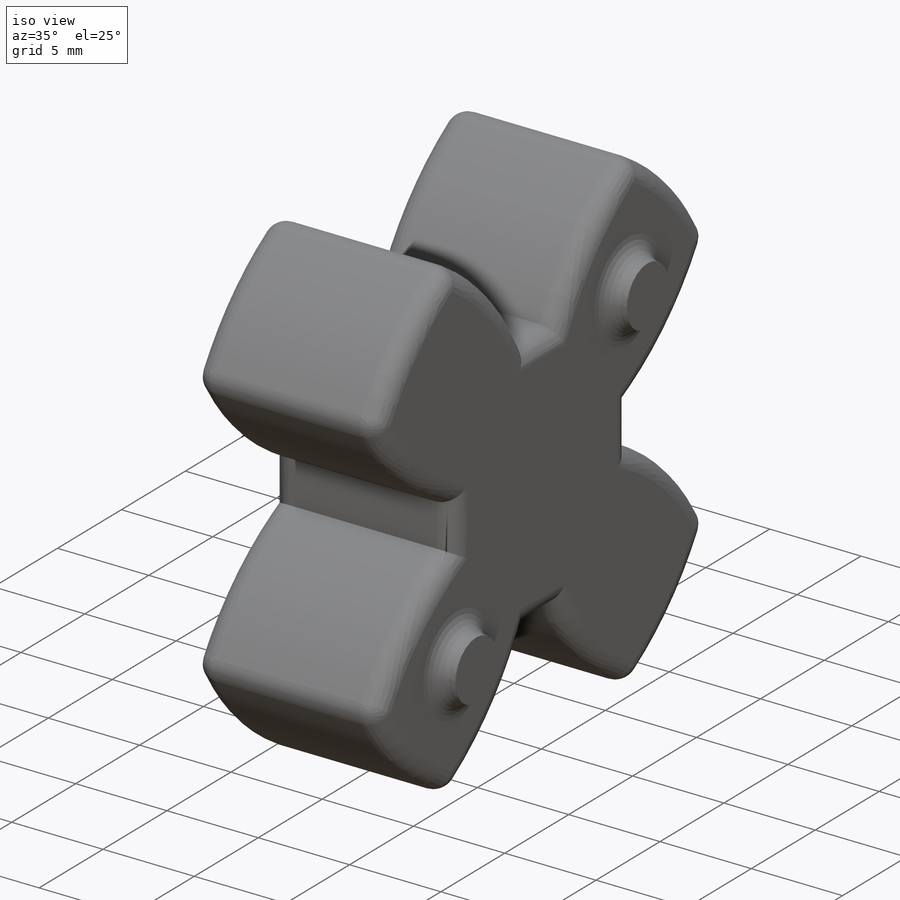
[diagram: iso view]
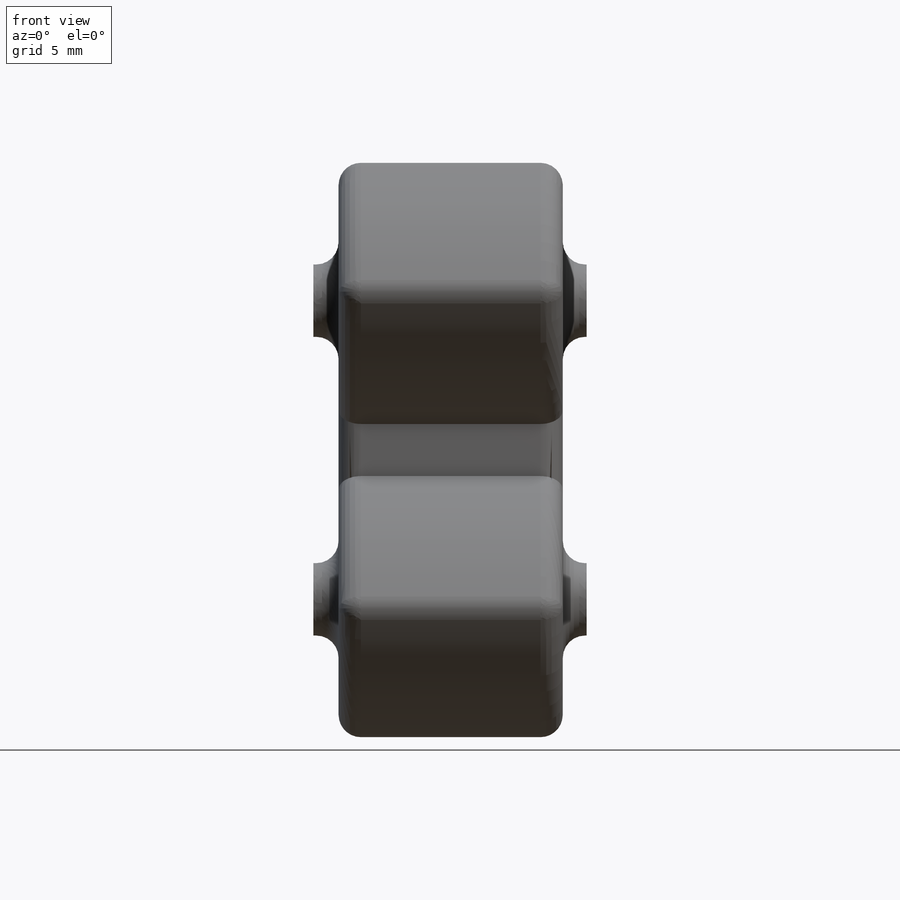
[diagram: front view]
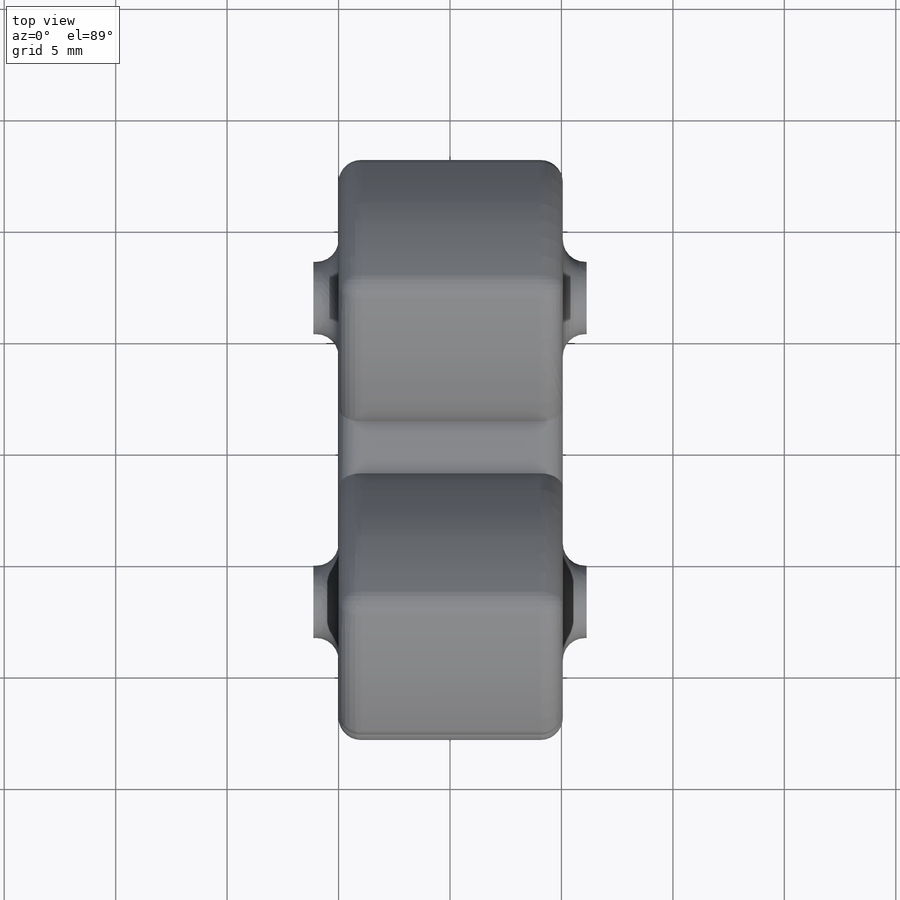
[diagram: top view]
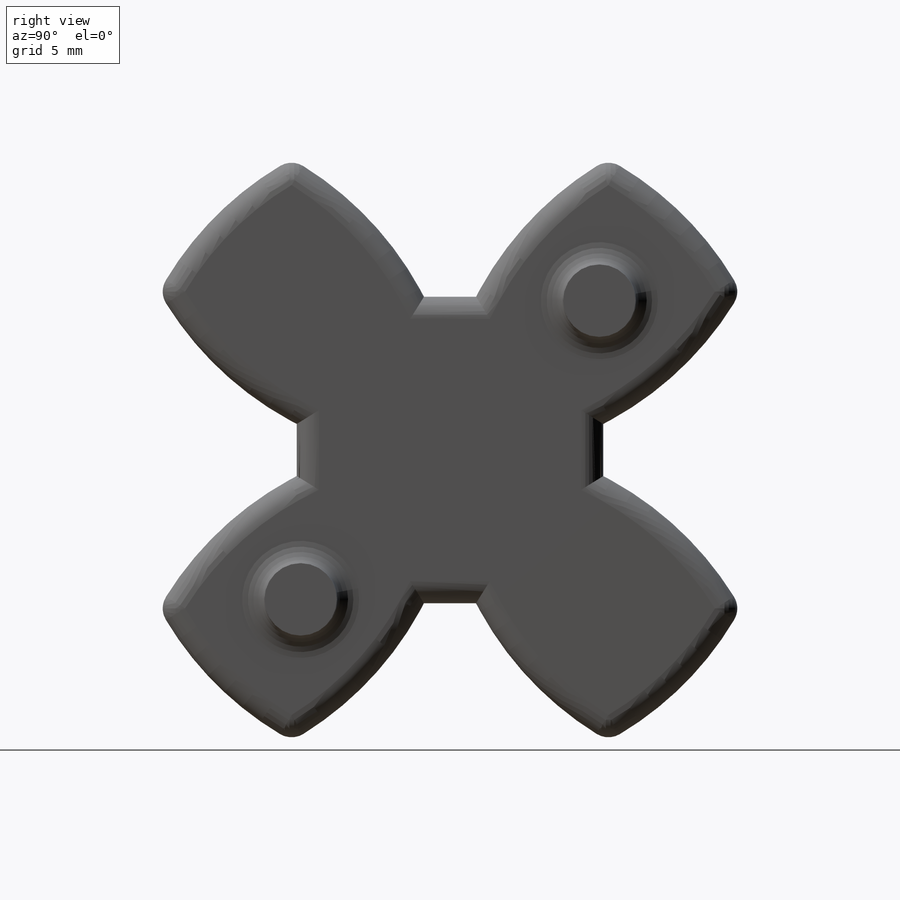
[diagram: right view]
SOLIDWORKS PART (.sldprt)
format: sldprt  version: not decoded by parser v0  size: 540,160 bytes
history: native  units: mm
features: sketch x3, fillet x3, extrude x2, material x1, cut_extrude x1, pattern_linear x1 (+12 scaffold rows collapsed)
feature tree (23):
  scaffold x12  (default folders/planes/origin — collapsed)
  material  "PUR"
  sketch  "Sketch1"  dims[D1=29.7mm]
  extrude  "Boss-Extrude1"  Depth=10.06mm
  sketch  "Sketch2"  dims[c1.D3=7.675mm c1.D2=14.85mm c1.D5=15.0mm c1.D1=0.5mm c2.D2=0.5mm c2.D3=~2.337974mm c2.D1=~2.337974mm c3.D2=~2.337974mm c3.D1=~2.337974mm c4.D2=~6.876343mm c4.D4=~2.337974mm c5.D4=90.0deg c6.D4=~6.876343mm c6.D5=~5.707356mm c6.D1=~6.876343mm c6.D2=~2.337974mm c7.D4=~2.337974mm c7.D3=4.0]
  cut_extrude  "Cortar-Extruir1"  [1 undecoded]
  sketch  "Croquis1"  dims[D1=3.25mm D2=5.375mm]
  extrude  "Saliente-Extruir1"  Depth=1.13mm
  pattern_linear  "MatrizL1"  Count1=2 Count2=1 Spacing1=11.13mm Spacing2=10mm
  fillet  "Redondeo1"  Radius=1mm
  fillet  "Redondeo2"  Radius=1mm
  fillet  "Redondeo3"  Radius=1mm
decode coverage: 9 of 10 modeling features carry decoded parameters
note: ~ marks probable driven/reference dimensions
note: 1 parameter value undecoded
note: suppression state not decoded; provenance and decode notes live in map.json
